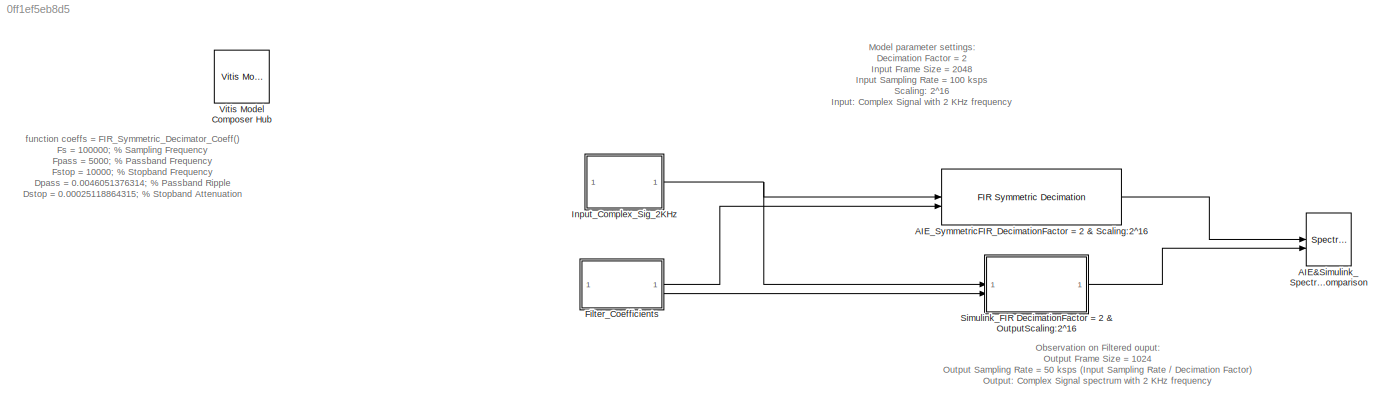
MODEL slx_0ff1ef5eb8d5
KIND model
CONFIG AbsTol = auto
CONFIG EnableMultiTasking = off
CONFIG FixedStep = auto
CONFIG MaxStep = auto
CONFIG MinStep = auto
CONFIG PostLoadFcn = Fs = 100000;  % Sampling Frequency\nFpass = 5000;              % Passband Frequency\nFstop = 10000;             % Stopband Frequency\nDpass = 0.0046051376314;   % Passband Ripple\nDstop = 0.00025118864315;  % Stopband Attenuation\ndens  = 16;                % Density Factor\n% Calculate the order from the parameters using FIRPMORD.\n[N, Fo, Ao, W] = firpmord([Fpass, Fstop]/(Fs/2), [1 0], [Dpass, Dstop]);...<+93ch>
CONFIG RelTol = 1e-3
CONFIG SampleTimeConstraint = Unconstrained
CONFIG SolverName = VariableStepAuto
CONFIG StartTime = 0.0
CONFIG StopTime = 1
BLOCK [SpectrumAnalyzer] AIE&Simulink_Spectrum_Comparison
  AllowFFTLengthLessThanSamplesPerUpdate = on
  AveragingMethod = Exponential
  ChannelNames = [""]
  DefaultConfigurationName = spbscopes.SpectrumAnalyzerBlockCfg
  NumInputPorts = 2
  ScopeSpecificationString = spbscopes.SpectrumAnalyzerBlockCfg('CurrentConfiguration', extmgr.ConfigurationSet(extmgr.Configuration('Core','General UI',true,'FigureColor',[0.16        0.16        0.16]),extmgr.Configuration('Visuals','Spectrum',true,'Title','','YLabel','','MinYLim','20.3445','MaxYLim','118.058','Legend',true,'AxesProperties',struct('XGrid',{'on','on'},'YGrid',{'on','on'},'ZGrid',{'on','on'},'Color',{[0 0 0],...<+2397ch>
  ShowLegend = on
  WasSavedAsWebScope = on
BLOCK [Reference] AIE_SymmetricFIR_DecimationFactor = 2 & Scaling:2^16  REF=aieDSP/FIR Symmetric Decimation
  SourceBlock = aieDSP/FIR Symmetric Decimation
  SourceType = FIR Symmetric Decimation
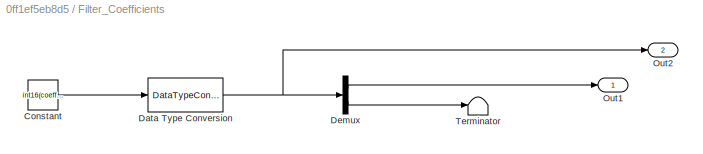
BLOCK [SubSystem] Filter_Coefficients
BLOCK [Constant] Filter_Coefficients/Constant
  Value = int16(coeffs*2^15)
BLOCK [DataTypeConversion] Filter_Coefficients/Data Type Conversion
  ConvertRealWorld = Stored Integer (SI)
  OutDataTypeStr = int16
  OutMax = [1]
  OutMin = [-1]
  RndMeth = Floor
  SaturateOnIntegerOverflow = off
BLOCK [Demux] Filter_Coefficients/Demux
  Outputs = 2
BLOCK [Outport] Filter_Coefficients/Out1
BLOCK [Outport] Filter_Coefficients/Out2
  Port = 2
BLOCK [Terminator] Filter_Coefficients/Terminator
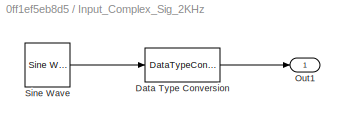
BLOCK [SubSystem] Input_Complex_Sig_2KHz
BLOCK [DataTypeConversion] Input_Complex_Sig_2KHz/Data Type Conversion
  ConvertRealWorld = Stored Integer (SI)
  OutDataTypeStr = int16
  OutMax = [1]
  OutMin = [-1]
  RndMeth = Floor
  SaturateOnIntegerOverflow = off
BLOCK [Outport] Input_Complex_Sig_2KHz/Out1
BLOCK [Reference] Input_Complex_Sig_2KHz/Sine Wave  REF=dspsrcs4/Sine Wave
  SourceBlock = dspsrcs4/Sine Wave
  SourceType = Sine Wave
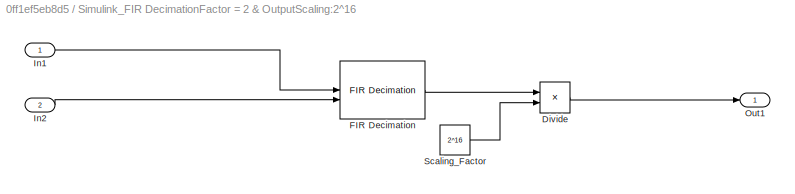
BLOCK [SubSystem] Simulink_FIR DecimationFactor = 2 & OutputScaling:2^16
BLOCK [Product] Simulink_FIR DecimationFactor = 2 & OutputScaling:2^16/Divide
  Inputs = */
  OutDataTypeStr = int16
BLOCK [Reference] Simulink_FIR DecimationFactor = 2 & OutputScaling:2^16/FIR Decimation  REF=dspmlti4/FIR
Decimation
  SourceBlock = dspmlti4/FIR\nDecimation
  SourceType = FIR Decimation
  UserDataPersistent = on
BLOCK [Inport] Simulink_FIR DecimationFactor = 2 & OutputScaling:2^16/In1
BLOCK [Inport] Simulink_FIR DecimationFactor = 2 & OutputScaling:2^16/In2
  Port = 2
BLOCK [Outport] Simulink_FIR DecimationFactor = 2 & OutputScaling:2^16/Out1
BLOCK [Constant] Simulink_FIR DecimationFactor = 2 & OutputScaling:2^16/Scaling_Factor
  OutDataTypeStr = int32
  Value = 2^16
BLOCK [Reference] Vitis Model Composer Hub  REF=vmcUtilities/Vitis Model Composer Hub
  SourceBlock = vmcUtilities/Vitis Model Composer Hub
  SourceType = VMC Hub
  Tag = genX
  UserDataPersistent = on
ANNOTATION (root): function coeffs = FIR_Symmetric_Decimator_Coeff() Fs = 100000; % Sampling Frequency Fpass = 5000; % Passband Frequency Fstop = 10000; % Stopband Frequency Dpass = 0.0046051376314; % Passband Ripple Dstop = 0.00025118864315; % Stopband Attenuation dens = 16; % Density Factor % Calculate the order from the parameters using FIRPMORD. [N, Fo, Ao, W] = firpmord([Fpass, Fstop]/(Fs/2), [1 0], [Dpass, Dst...<+102ch>
ANNOTATION (root): Model parameter settings: Decimation Factor = 2 Input Frame Size = 2048 Input Sampling Rate = 100 ksps Scaling: 2^16 Input: Complex Signal with 2 KHz frequency
ANNOTATION (root): Observation on Filtered ouput: Output Frame Size = 1024 Output Sampling Rate = 50 ksps (Input Sampling Rate / Decimation Factor) Output: Complex Signal spectrum with 2 KHz frequency
LINE AIE_SymmetricFIR_DecimationFactor = 2 & Scaling:2^16:1 -> AIE&Simulink_Spectrum_Comparison:1
LINE Filter_Coefficients/Constant:1 -> Filter_Coefficients/Data Type Conversion:1
NET Filter_Coefficients/Data Type Conversion:1 -> Filter_Coefficients/Demux:1, Filter_Coefficients/Out2:1
LINE Filter_Coefficients/Demux:1 -> Filter_Coefficients/Out1:1
LINE Filter_Coefficients/Demux:2 -> Filter_Coefficients/Terminator:1
LINE Filter_Coefficients:1 -> AIE_SymmetricFIR_DecimationFactor = 2 & Scaling:2^16:2
LINE Filter_Coefficients:2 -> Simulink_FIR DecimationFactor = 2 & OutputScaling:2^16:2
LINE Input_Complex_Sig_2KHz/Data Type Conversion:1 -> Input_Complex_Sig_2KHz/Out1:1
LINE Input_Complex_Sig_2KHz/Sine Wave:1 -> Input_Complex_Sig_2KHz/Data Type Conversion:1
NET Input_Complex_Sig_2KHz:1 -> AIE_SymmetricFIR_DecimationFactor = 2 & Scaling:2^16:1, Simulink_FIR DecimationFactor = 2 & OutputScaling:2^16:1
LINE Simulink_FIR DecimationFactor = 2 & OutputScaling:2^16/Divide:1 -> Simulink_FIR DecimationFactor = 2 & OutputScaling:2^16/Out1:1
LINE Simulink_FIR DecimationFactor = 2 & OutputScaling:2^16/FIR Decimation:1 -> Simulink_FIR DecimationFactor = 2 & OutputScaling:2^16/Divide:1
LINE Simulink_FIR DecimationFactor = 2 & OutputScaling:2^16/In1:1 -> Simulink_FIR DecimationFactor = 2 & OutputScaling:2^16/FIR Decimation:1
LINE Simulink_FIR DecimationFactor = 2 & OutputScaling:2^16/In2:1 -> Simulink_FIR DecimationFactor = 2 & OutputScaling:2^16/FIR Decimation:2
LINE Simulink_FIR DecimationFactor = 2 & OutputScaling:2^16/Scaling_Factor:1 -> Simulink_FIR DecimationFactor = 2 & OutputScaling:2^16/Divide:2
LINE Simulink_FIR DecimationFactor = 2 & OutputScaling:2^16:1 -> AIE&Simulink_Spectrum_Comparison:2
note: NET lines group one-source signal fan-out (src -> all destinations, sorted); 1:1 wires keep LINE
